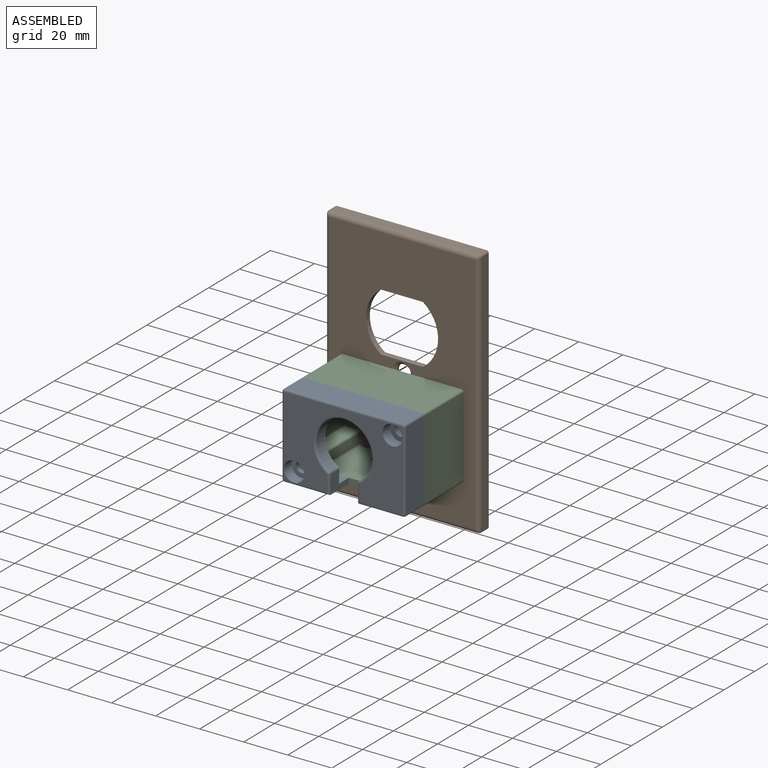
[diagram: assembled view]
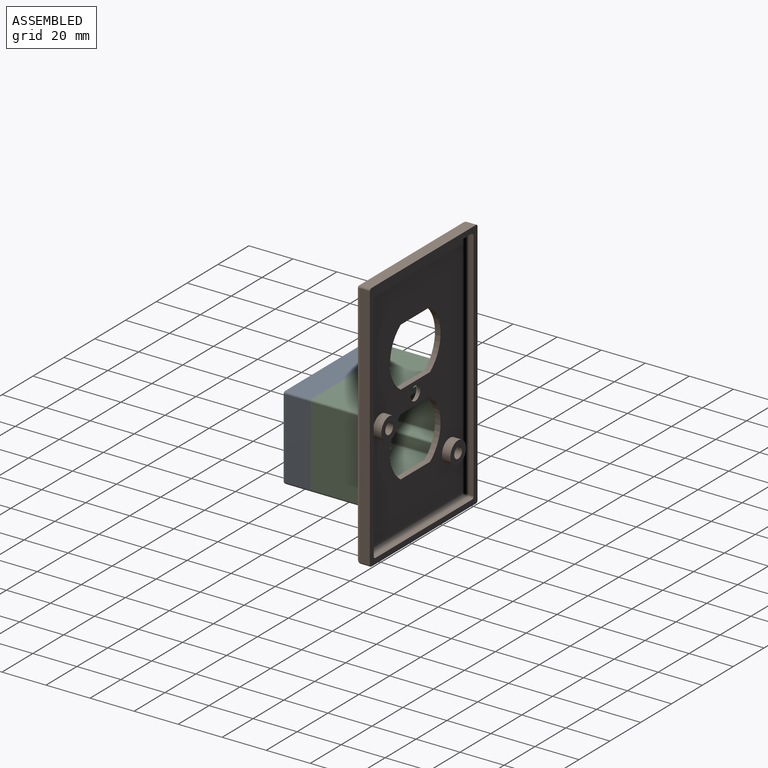
[diagram: assembled view, second angle]
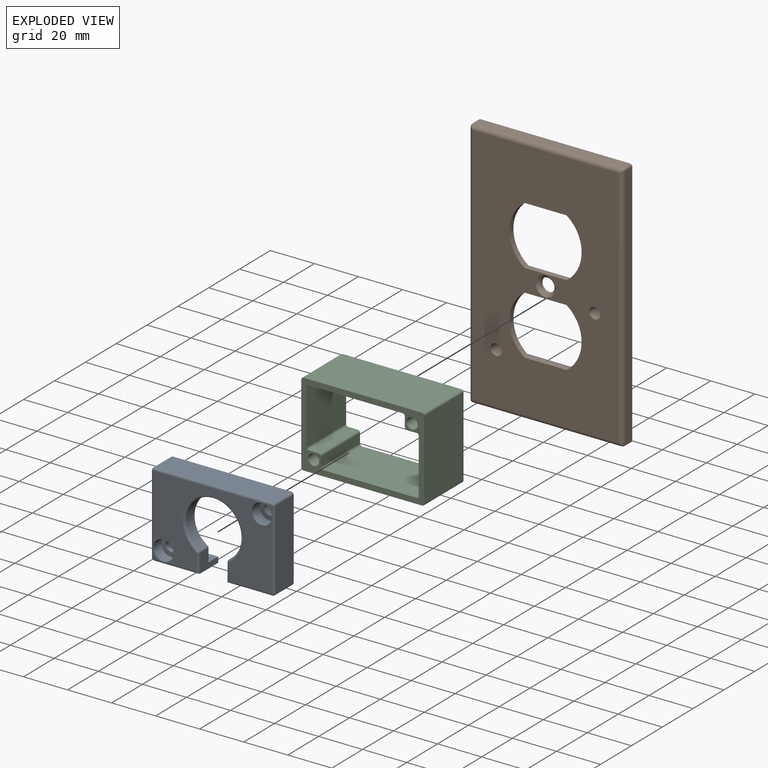
[diagram: exploded view]
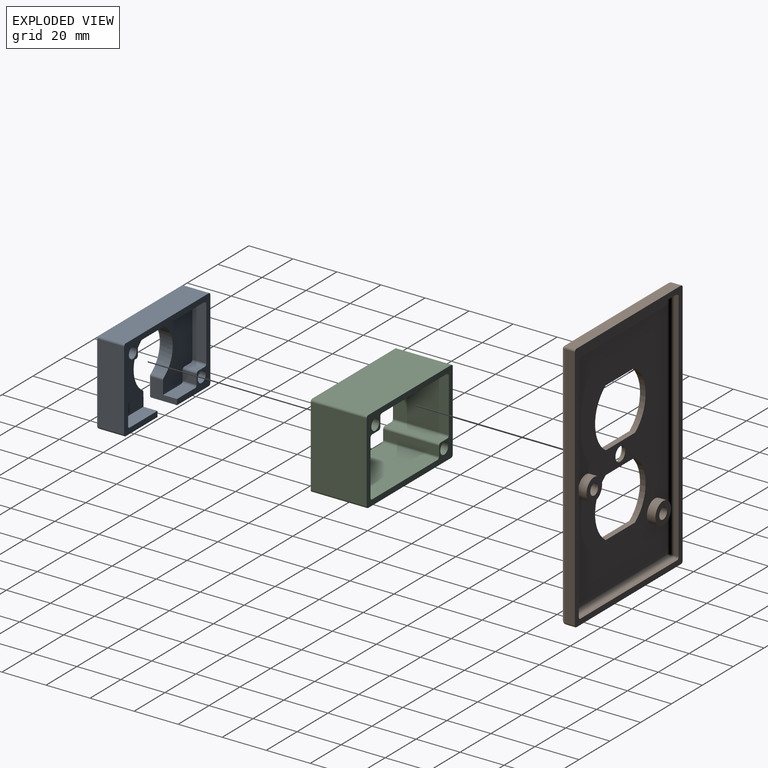
[diagram: exploded view, second angle]
ASSEMBLY  parts=3 mates=2
PART A: 56 faces, bbox 55.9x12.7x38.5 mm
  f0: plane 53.86x36.08mm, normal (0,-1,0), area 1121.1mm2, adj f39,f40,f41,f44,f45,f48,f49,f51
  f1: plane 4.57x4.57mm, normal (0,-1,0), area 4.5mm2, adj f44,f48,f54
  f2: cylinder r=2.54mm len=7.62mm, axis (0,1,0), area 121.6mm2, adj f6,f55
  f3: cylinder r=2.54mm len=7.62mm, axis (0,1,0), area 121.6mm2, adj f6,f53
  f4: plane 20.6x11.68mm, normal (0,0,-1), area 240.7mm2, adj f6,f14,f33,f51
  f5: plane 4.57x4.57mm, normal (0,-1,0), area 4.5mm2, adj f39,f40,f52
  f6: plane 55.88x38.1mm, normal (0,1,0), area 459.5mm2, adj f2,f3,f4,f7,f9,f10,f11,f12
  f7: plane 18.04x6.35mm, normal (0,0,1), area 114.6mm2, adj f6,f8,f18,f33
  f8: plane 50.8x33.02mm, normal (0,1,0), area 1020mm2, adj f7,f17,f18,f19,f20,f21,f22,f23
  f9: plane 53.85x11.68mm, normal (0,0,1), area 629.2mm2, adj f6,f10,f16,f44
  f10: cylinder r=1.02mm len=11.68mm, axis (0,1,0), area 18.6mm2, adj f6,f9,f11,f42
  f11: plane 36.07x11.68mm, normal (-1,0,0), area 421.4mm2, adj f6,f10,f12,f40
  f12: cylinder r=1.02mm len=11.68mm, axis (0,1,0), area 18.6mm2, adj f6,f11,f13,f38
  f13: plane 20.55x11.68mm, normal (0,0,-1), area 240.1mm2, adj f6,f12,f34,f39
  f14: cylinder r=1.02mm len=11.68mm, axis (0,1,0), area 18.6mm2, adj f4,f6,f15,f50
  f15: plane 36.07x11.68mm, normal (1,0,0), area 421.4mm2, adj f6,f14,f16,f48
  f16: cylinder r=1.02mm len=11.68mm, axis (0,1,0), area 18.6mm2, adj f6,f9,f15,f46
  f17: plane 24.64x6.35mm, normal (-1,0,0), area 156.5mm2, adj f6,f8,f18,f32
  f18: cylinder r=1.02mm len=6.35mm, axis (0,1,0), area 10.1mm2, adj f6,f7,f8,f17
  f19: plane 11.68x6.35mm, normal (0,0,1), area 74.1mm2, adj f6,f8,f20,f34
  f20: cylinder r=1.02mm len=6.35mm, axis (0,1,0), area 10.1mm2, adj f6,f8,f19,f21
  f21: plane 6.35x4.32mm, normal (1,0,0), area 27.4mm2, adj f6,f8,f20,f22
  f22: cylinder r=1.02mm len=6.35mm, axis (0,1,0), area 10.1mm2, adj f6,f8,f21,f23
  f23: plane 6.35x4.32mm, normal (0,0,1), area 27.4mm2, adj f6,f8,f22,f24
  f24: cylinder r=1.02mm len=6.35mm, axis (0,1,0), area 10.1mm2, adj f6,f8,f23,f25
  f25: plane 24.64x6.35mm, normal (1,0,0), area 156.5mm2, adj f6,f8,f24,f26
  f26: cylinder r=1.02mm len=6.35mm, axis (0,1,0), area 10.1mm2, adj f6,f8,f25,f27
  f27: plane 42.42x6.35mm, normal (0,0,-1), area 269.4mm2, adj f6,f8,f26,f28
  f28: cylinder r=1.02mm len=6.35mm, axis (0,1,0), area 10.1mm2, adj f6,f8,f27,f29
  f29: plane 6.35x4.32mm, normal (-1,0,0), area 27.4mm2, adj f6,f8,f28,f30
  f30: cylinder r=1.02mm len=6.35mm, axis (0,1,0), area 10.1mm2, adj f6,f8,f29,f31
  f31: plane 6.35x4.32mm, normal (0,0,-1), area 27.4mm2, adj f6,f8,f30,f32
  f32: cylinder r=1.02mm len=6.35mm, axis (0,1,0), area 10.1mm2, adj f6,f8,f17,f31
  f33: plane 11.68x8.57mm, normal (-1,0,0.01), area 61.8mm2, adj f4,f6,f7,f8,f35,f49
  f34: plane 11.68x8.56mm, normal (1,0,-0.01), area 61.8mm2, adj f6,f8,f13,f19,f37,f41
  f35: cylinder r=1.02mm len=5.33mm, axis (0,-1,0), area 5.4mm2, adj f8,f33,f36,f47
  f36: cylinder r=12.7mm len=25.4mm, axis (0,-1,0), area 348.8mm2, adj f8,f35,f37,f45
  f37: cylinder r=1.02mm len=5.33mm, axis (0,-1,0), area 5.5mm2, adj f8,f34,f36,f43
  f38: bspline ~1.02x1.02mm, area 1.1mm2, adj f12,f39,f40
  f39: bspline ~21.58x1.02mm, area 33.1mm2, adj f0,f5,f13,f38,f41
  f40: bspline ~36.07x1.02mm, area 59.6mm2, adj f0,f5,f11,f38,f42
  f41: bspline ~8.56x1.07mm, area 13.3mm2, adj f0,f34,f39,f43
  f42: bspline ~1.02x1.02mm, area 1.1mm2, adj f10,f40,f44
  f43: bspline ~1.02x1.02mm, area 0.7mm2, adj f37,f41,f45
  f44: bspline ~53.85x1.02mm, area 89mm2, adj f0,f1,f9,f42,f46
  f45: bspline ~27.89x25.53mm, area 111mm2, adj f0,f36,f43,f47
  f46: bspline ~1.02x1.02mm, area 1.1mm2, adj f16,f44,f48
  f47: bspline ~1.02x1.02mm, area 0.7mm2, adj f35,f45,f49
  f48: bspline ~36.07x1.02mm, area 59.6mm2, adj f0,f1,f15,f46,f50
  f49: bspline ~9x1.07mm, area 13.3mm2, adj f0,f33,f47,f51
  f50: bspline ~1.02x1.02mm, area 1.1mm2, adj f14,f48,f51
  f51: bspline ~21.63x1.02mm, area 33.2mm2, adj f0,f4,f49,f50
  f52: cylinder r=4.57mm len=9.14mm, axis (0,-1,0), area 145.9mm2, adj f0,f5,f53
  f53: plane 9.14x9.14mm, normal (0,-1,0), area 45.4mm2, adj f3,f52
  f54: cylinder r=4.57mm len=9.14mm, axis (0,-1,0), area 145.9mm2, adj f0,f1,f55
  f55: plane 9.14x9.14mm, normal (0,-1,0), area 45.4mm2, adj f2,f54
PART B: 51 faces, bbox 69.9x6.4x114.3 mm
  f0: plane 110.49x66.04mm, normal (0,-1,0), area 5665mm2, adj f27,f30,f31,f34,f36,f37,f38,f39
  f1: plane 105.41x60.96mm, normal (0,1,0), area 4702.8mm2, adj f20,f21,f24,f25,f35,f37,f38,f39
  f2: plane 112.27x4.45mm, normal (1,0,0), area 499mm2, adj f3,f9,f18,f30
  f3: cylinder r=1.02mm len=4.45mm, axis (0,1,0), area 7.1mm2, adj f2,f4,f18,f28
  f4: plane 67.82x4.45mm, normal (0,0,1), area 301.5mm2, adj f3,f5,f18,f27
  f5: cylinder r=1.02mm len=4.45mm, axis (0,1,0), area 7.1mm2, adj f4,f6,f18,f29
  f6: plane 112.27x4.45mm, normal (-1,0,0), area 499mm2, adj f5,f7,f18,f31
  f7: cylinder r=1.02mm len=4.45mm, axis (0,1,0), area 7.1mm2, adj f6,f8,f18,f33
  f8: plane 67.82x4.45mm, normal (0,0,-1), area 301.5mm2, adj f7,f9,f18,f34
  f9: cylinder r=1.02mm len=4.45mm, axis (0,1,0), area 7.1mm2, adj f2,f8,f18,f32
  f10: cylinder r=1.02mm len=1.91mm, axis (0,-1,0), area 3mm2, adj f11,f17,f18,f23
  f11: plane 62.74x1.91mm, normal (0,0,1), area 119.5mm2, adj f10,f12,f18,f21
  f12: cylinder r=1.02mm len=1.91mm, axis (0,-1,0), area 3mm2, adj f11,f13,f18,f19
  f13: plane 107.19x1.91mm, normal (1,0,0), area 204.2mm2, adj f12,f14,f18,f20
  f14: cylinder r=1.02mm len=1.91mm, axis (0,-1,0), area 3mm2, adj f13,f15,f18,f22
  f15: plane 62.74x1.91mm, normal (0,0,-1), area 119.5mm2, adj f14,f16,f18,f24
  f16: cylinder r=1.02mm len=1.91mm, axis (0,-1,0), area 3mm2, adj f15,f17,f18,f26
  f17: plane 107.19x1.91mm, normal (-1,0,0), area 204.2mm2, adj f10,f16,f18,f25
  f18: plane 114.3x69.85mm, normal (0,1,0), area 909.7mm2, adj f2,f3,f4,f5,f6,f7,f8,f9
  f19: bspline ~2.28x1.91mm, area 3.2mm2, adj f12,f20,f21
  f20: cylinder r=1.91mm len=107.19mm, axis (0,0,1), area 318.8mm2, adj f1,f13,f19,f22
  f21: cylinder r=1.91mm len=62.74mm, axis (-1,0,0), area 185.8mm2, adj f1,f11,f19,f23
  f22: bspline ~2.28x1.91mm, area 3.2mm2, adj f14,f20,f24
  f23: bspline ~2.28x1.91mm, area 3.2mm2, adj f10,f21,f25
  f24: cylinder r=1.91mm len=62.74mm, axis (1,0,0), area 185.8mm2, adj f1,f15,f22,f26
  f25: cylinder r=1.91mm len=107.19mm, axis (0,0,-1), area 318.8mm2, adj f1,f17,f23,f26
  f26: bspline ~2.28x1.91mm, area 3.2mm2, adj f16,f24,f25
  f27: cylinder r=1.91mm len=67.82mm, axis (1,0,0), area 201mm2, adj f0,f4,f28,f29
  f28: bspline ~2.28x1.91mm, area 3.2mm2, adj f3,f27,f30
  f29: bspline ~2.28x1.91mm, area 3.2mm2, adj f5,f27,f31
  f30: cylinder r=1.91mm len=112.27mm, axis (0,0,-1), area 334mm2, adj f0,f2,f28,f32
  f31: cylinder r=1.91mm len=112.27mm, axis (0,0,1), area 334mm2, adj f0,f6,f29,f33
  f32: bspline ~2.28x1.91mm, area 3.2mm2, adj f9,f30,f34
  f33: bspline ~2.28x1.91mm, area 3.2mm2, adj f7,f31,f34
  f34: cylinder r=1.91mm len=67.82mm, axis (-1,0,0), area 201mm2, adj f0,f8,f32,f33
  f35: cylinder r=3.17mm len=6.35mm, axis (0,-1,0), area 25.3mm2, adj f1,f36
  f36: cone r=3.17mm half-angle=45deg, axis (0,-1,0), area 43mm2, adj f0,f35
  f37: cylinder r=16.39mm len=26.67mm, axis (0,-1,0), area 79.1mm2, adj f0,f1,f38,f40
  f38: plane 19.05x2.54mm, normal (0,0,-1), area 48.4mm2, adj f0,f1,f37,f39
  f39: cylinder r=16.39mm len=26.67mm, axis (0,-1,0), area 79.1mm2, adj f0,f1,f38,f40
  f40: plane 19.05x2.54mm, normal (0,0,1), area 48.4mm2, adj f0,f1,f37,f39
  f41: plane 19.05x2.54mm, normal (0,0,1), area 48.4mm2, adj f0,f1,f42,f44
  f42: cylinder r=16.39mm len=26.67mm, axis (0,-1,0), area 79.1mm2, adj f0,f1,f41,f43
  f43: plane 19.05x2.54mm, normal (0,0,-1), area 48.4mm2, adj f0,f1,f42,f44
  f44: cylinder r=16.39mm len=26.67mm, axis (0,-1,0), area 79.1mm2, adj f0,f1,f41,f43
  f45: cylinder r=5.08mm len=10.16mm, axis (0,-1,0), area 121.6mm2, adj f1,f46
  f46: plane 10.16x10.16mm, normal (0,1,0), area 60.8mm2, adj f45,f50
  f47: cylinder r=5.08mm len=10.16mm, axis (0,-1,0), area 121.6mm2, adj f1,f48
  f48: plane 10.16x10.16mm, normal (0,1,0), area 60.8mm2, adj f47,f49
  f49: cylinder r=2.54mm len=6.35mm, axis (0,-1,0), area 101.3mm2, adj f0,f48
  f50: cylinder r=2.54mm len=6.35mm, axis (0,-1,0), area 101.3mm2, adj f0,f46
PART C: 28 faces, bbox 55.9x25.4x38.1 mm
  f0: plane 53.85x25.4mm, normal (0,0,1), area 1367.7mm2, adj f1,f9,f10,f11
  f1: cylinder r=1.02mm len=25.4mm, axis (0,1,0), area 40.5mm2, adj f0,f2,f10,f11
  f2: plane 36.07x25.4mm, normal (-1,0,0), area 916.1mm2, adj f1,f3,f10,f11
  f3: cylinder r=1.02mm len=25.4mm, axis (0,1,0), area 40.5mm2, adj f2,f4,f10,f11
  f4: plane 53.85x25.4mm, normal (0,0,-1), area 1367.7mm2, adj f3,f5,f10,f11
  f5: cylinder r=1.02mm len=25.4mm, axis (0,1,0), area 40.5mm2, adj f4,f6,f10,f11
  f6: plane 36.07x25.4mm, normal (1,0,0), area 916.1mm2, adj f5,f9,f10,f11
  f7: cylinder r=2.54mm len=25.4mm, axis (0,1,0), area 405.4mm2, adj f10,f11
  f8: cylinder r=2.54mm len=25.4mm, axis (0,1,0), area 405.4mm2, adj f10,f11
  f9: cylinder r=1.02mm len=25.4mm, axis (0,1,0), area 40.5mm2, adj f0,f6,f10,f11
  f10: plane 55.88x38.1mm, normal (0,-1,0), area 491.7mm2, adj f0,f1,f2,f3,f4,f5,f6,f7
  f11: plane 55.88x38.1mm, normal (0,1,0), area 491.7mm2, adj f0,f1,f2,f3,f4,f5,f6,f7
  f12: plane 25.4x24.64mm, normal (1,0,0), area 625.8mm2, adj f10,f11,f13,f27
  f13: cylinder r=1.02mm len=25.4mm, axis (0,-1,0), area 40.5mm2, adj f10,f11,f12,f14
  f14: plane 42.42x25.4mm, normal (0,0,1), area 1077.4mm2, adj f10,f11,f13,f15
  f15: cylinder r=1.02mm len=25.4mm, axis (0,-1,0), area 40.5mm2, adj f10,f11,f14,f16
  f16: plane 25.4x4.32mm, normal (-1,0,0), area 109.7mm2, adj f10,f11,f15,f17
  f17: cylinder r=1.02mm len=25.4mm, axis (0,-1,0), area 40.5mm2, adj f10,f11,f16,f18
  f18: plane 25.4x4.32mm, normal (0,0,1), area 109.7mm2, adj f10,f11,f17,f19
  f19: cylinder r=1.02mm len=25.4mm, axis (0,-1,0), area 40.5mm2, adj f10,f11,f18,f20
  f20: plane 25.4x24.64mm, normal (-1,0,0), area 625.8mm2, adj f10,f11,f19,f21
  f21: cylinder r=1.02mm len=25.4mm, axis (0,-1,0), area 40.5mm2, adj f10,f11,f20,f22
  f22: plane 42.42x25.4mm, normal (0,0,-1), area 1077.4mm2, adj f10,f11,f21,f23
  f23: cylinder r=1.02mm len=25.4mm, axis (0,-1,0), area 40.5mm2, adj f10,f11,f22,f24
  f24: plane 25.4x4.32mm, normal (1,0,0), area 109.7mm2, adj f10,f11,f23,f25
  f25: cylinder r=1.02mm len=25.4mm, axis (0,-1,0), area 40.5mm2, adj f10,f11,f24,f26
  f26: plane 25.4x4.32mm, normal (0,0,-1), area 109.7mm2, adj f10,f11,f25,f27
  f27: cylinder r=1.02mm len=25.4mm, axis (0,-1,0), area 40.5mm2, adj f10,f11,f12,f26
PLACE A rot(axis=(1,0,0),0deg) t=(34.93,-29.83,-43.12)mm
PLACE B t=(34.93,-1.89,-24.7)mm fixed
PLACE C rot(axis=(1,0,0),180deg) t=(34.93,-29.83,-43.12)mm
MATE fastened B.f47 <-> C.f8  axis (0,-1,0) through (12.57,-4.43,-56.58)mm
MATE fastened C.f8 <-> A.f3  axis (0,-1,0) through (12.57,-29.83,-56.58)mm
